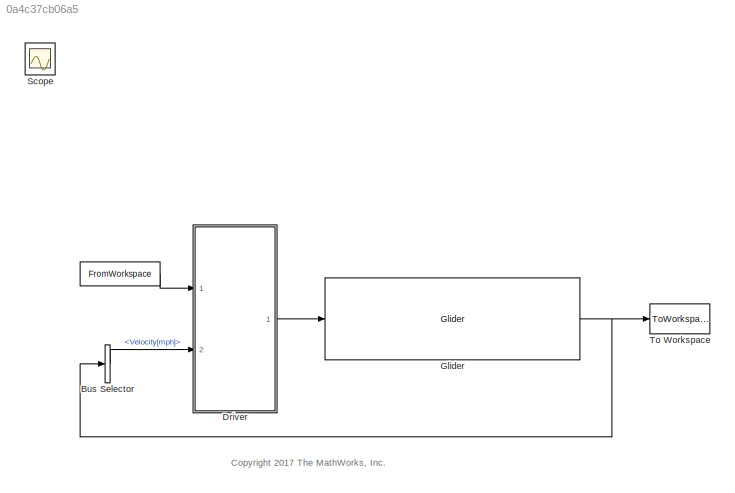
MODEL slx_0a4c37cb06a5
KIND model
CONFIG AbsTol = auto
CONFIG EnableMultiTasking = on
CONFIG FixedStep = auto
CONFIG MaxStep = .1
CONFIG MinStep = auto
CONFIG PostLoadFcn = GliderDir = pwd;\n\ncd ..\;\nSimulinkDir = pwd;\naddpath(SimulinkDir);\n\ncd(GliderDir);\n\n
CONFIG RelTol = 1e-3
CONFIG SampleTimeConstraint = Unconstrained
CONFIG Solver = ode45
CONFIG SolverName = ode45
CONFIG StartTime = 0.0
CONFIG StopTime = TimeUS06
WORKSPACE source: MAT-file member
WORKSPACE DrCycles: struct (value not decoded)
BLOCK [FromWorkspace]  
  SampleTime = 0
  Tag = DriveCycle
  VariableName = DrCycles.US06
  ZeroCross = on
BLOCK [BusSelector] Bus Selector
  OutputAsBus = off
  OutputSignals = Velocity[mph]
  Ports = [1, 1]
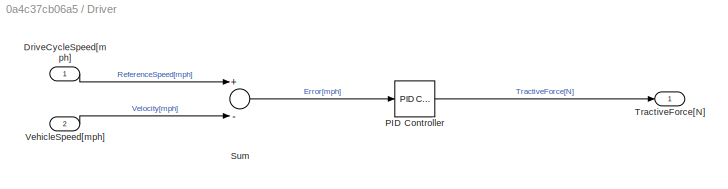
BLOCK [SubSystem] Driver
  Ports = [2, 1]
  RequestExecContextInheritance = off
BLOCK [Inport] Driver/DriveCycleSpeed[mph]
  IconDisplay = Port number
BLOCK [Reference] Driver/PID Controller  REF=simulink/Continuous/PID Controller
  Ports = [1, 1]
  SourceBlock = simulink/Continuous/PID Controller
  SourceProductBaseCode = SL
  SourceProductName = Simulink
  SourceType = PID 1dof
BLOCK [Sum] Driver/Sum
  InputSameDT = off
  Inputs = +-
  OutDataTypeStr = Inherit: Inherit via internal rule
  Ports = [2, 1]
  SaturateOnIntegerOverflow = off
BLOCK [Outport] Driver/TractiveForce[N]
  IconDisplay = Port number
BLOCK [Inport] Driver/VehicleSpeed[mph]
  IconDisplay = Port number
  Port = 2
BLOCK [Reference] Glider  REF=Driver_Glider_Library/Glider
  Ports = [1, 1]
  SourceBlock = Driver_Glider_Library/Glider
BLOCK [Scope] Scope
  Floating = off
  IOType = viewer
  NumInputPorts = 1
  Ports = []
  ScopeSpecificationString = Simulink.scopes.TimeScopeBlockCfg('CurrentConfiguration', extmgr.ConfigurationSet(extmgr.Configuration('Core','General UI',true),extmgr.Configuration('Core','Source UI',true),extmgr.Configuration('Sources','WiredSimulink',true),extmgr.Configuration('Visuals','Time Domain',true,'SerializedDisplays',{struct('MinYLimReal','-10.07134','MaxYLimReal','90.34126','YLabelReal','','MinYLimMag','0.00000','Ma...<+1426ch>
BLOCK [ToWorkspace] To Workspace
  FixptAsFi = on
  MaxDataPoints = inf
  Ports = [1]
  SampleTime = -1
  Save2DSignal = 3-D array (concatenate along third dimension)
  SaveFormat = Timeseries
  VariableName = results
ANNOTATION (root): <copyright redacted>
LINE  :1 -> Driver:1
LINE Bus Selector:1 -> Driver:2
LINE Driver/DriveCycleSpeed[mph]:1 -> Driver/Sum:1
LINE Driver/PID Controller:1 -> Driver/TractiveForce[N]:1
LINE Driver/Sum:1 -> Driver/PID Controller:1
LINE Driver/VehicleSpeed[mph]:1 -> Driver/Sum:2
LINE Driver:1 -> Glider:1
NET Glider:1 -> Bus Selector:1, To Workspace:1
note: NET lines group one-source signal fan-out (src -> all destinations, sorted); 1:1 wires keep LINE
